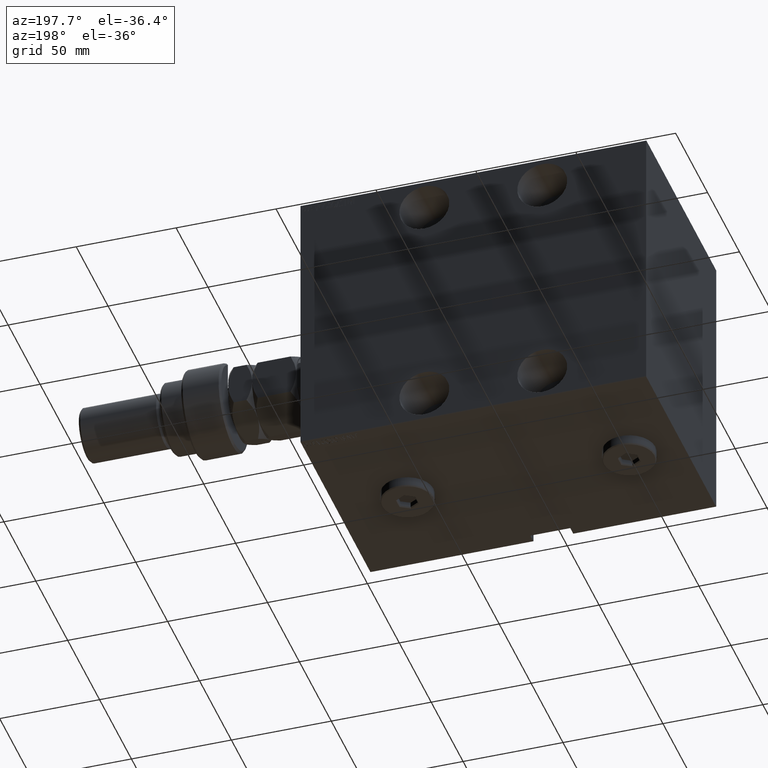
[diagram: clean part render]
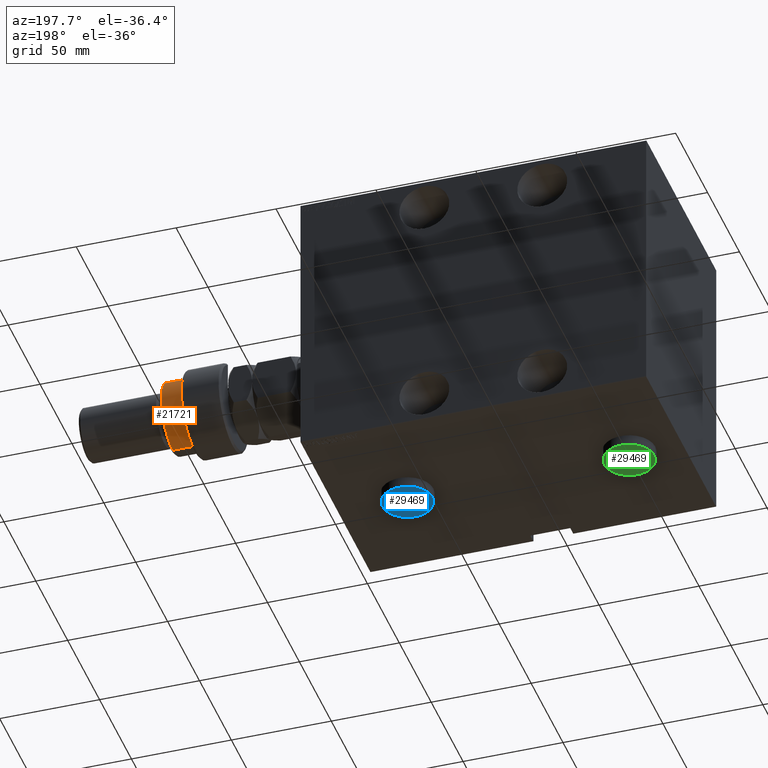
[diagram: same view with three faces highlighted in distinct colors, each labeled with its STEP entity id]
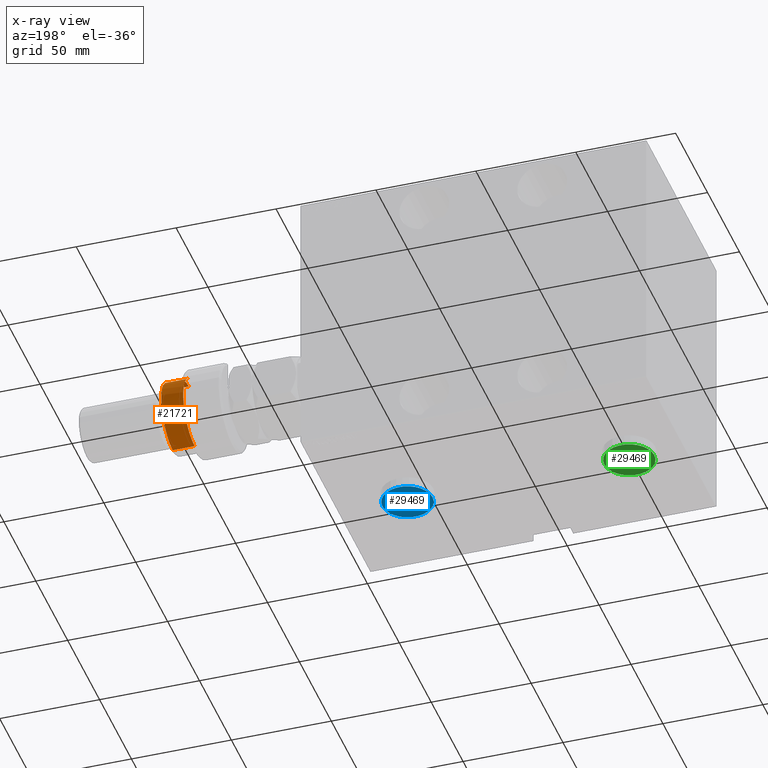
[diagram: x-ray of the same camera — body ghosted, the three highlighted faces saturated]
A machine part, auxiliary view with three faces highlighted in distinct colors.
The next image is the same camera in x-ray (body ghosted, the three faces saturated) — at least one of them is partly hidden behind the body in this view.
Their STEP definitions:

[orange] entity #21721 — the highlighted cylindrical surface (partial cylindrical patch) has radius 18 mm, axis along (-1, -0, 0).
#166 = LINE ( 'NONE', #10925, #43457 ) ;
#323 = FACE_OUTER_BOUND ( 'NONE', #20887, .T. ) ;
#633 = VECTOR ( 'NONE', #8754, 1000.000000000000000 ) ;
#2312 = CARTESIAN_POINT ( 'NONE',  ( -18.00000000000000000, 0.000000000000000000, 32.00000000000000000 ) ) ;
#2320 = CIRCLE ( 'NONE', #19082, 18.00000000000000000 ) ;
#3198 = ORIENTED_EDGE ( 'NONE', *, *, #14496, .F. ) ;
#3538 = ORIENTED_EDGE ( 'NONE', *, *, #39695, .F. ) ;
#6126 = LINE ( 'NONE', #24281, #633 ) ;
#7259 = DIRECTION ( 'NONE',  ( -1.000000000000000000, 0.000000000000000000, 0.000000000000000000 ) ) ;
#8520 = CARTESIAN_POINT ( 'NONE',  ( -15.28888485142065434, 9.500000000000000000, 23.00000000000000000 ) ) ;
#8754 = DIRECTION ( 'NONE',  ( -0.000000000000000000, -0.000000000000000000, -1.000000000000000000 ) ) ;
#10375 = DIRECTION ( 'NONE',  ( 0.000000000000000000, 0.000000000000000000, -1.000000000000000000 ) ) ;
#10925 = CARTESIAN_POINT ( 'NONE',  ( -15.28888485142065434, 9.500000000000000000, 32.00000000000000000 ) ) ;
#13495 = VERTEX_POINT ( 'NONE', #18708 ) ;
#14496 = EDGE_CURVE ( 'NONE', #25376, #39594, #19765, .T. ) ;
#14901 = CYLINDRICAL_SURFACE ( 'NONE', #36807, 18.00000000000000000 ) ;
#16530 = EDGE_CURVE ( 'NONE', #20883, #47144, #2320, .T. ) ;
#18254 = DIRECTION ( 'NONE',  ( -0.000000000000000000, -0.000000000000000000, -1.000000000000000000 ) ) ;
#18708 = CARTESIAN_POINT ( 'NONE',  ( -18.00000000000000000, 0.000000000000000000, 30.99999999999999645 ) ) ;
#19050 = EDGE_CURVE ( 'NONE', #13495, #43183, #33659, .T. ) ;
#19082 = AXIS2_PLACEMENT_3D ( 'NONE', #43895, #39630, #32920 ) ;
#19641 = CARTESIAN_POINT ( 'NONE',  ( 18.00000000000000000, 2.204364238465235428E-15, 20.00000000000000000 ) ) ;
#19675 = ORIENTED_EDGE ( 'NONE', *, *, #37031, .T. ) ;
#19765 = CIRCLE ( 'NONE', #38100, 18.00000000000000000 ) ;
#20142 = CARTESIAN_POINT ( 'NONE',  ( 0.000000000000000000, 0.000000000000000000, 30.99999999999999645 ) ) ;
#20532 = ORIENTED_EDGE ( 'NONE', *, *, #16530, .T. ) ;
#20883 = VERTEX_POINT ( 'NONE', #19641 ) ;
#20887 = EDGE_LOOP ( 'NONE', ( #31263, #33892, #20532, #19675, #3198, #3538 ) ) ;
#21721 = ADVANCED_FACE ( 'NONE', ( #323 ), #14901, .T. ) ;
#24281 = CARTESIAN_POINT ( 'NONE',  ( 18.00000000000000000, 2.204364238465235428E-15, 32.00000000000000000 ) ) ;
#25376 = VERTEX_POINT ( 'NONE', #38176 ) ;
#25504 = DIRECTION ( 'NONE',  ( 0.000000000000000000, 0.000000000000000000, 1.000000000000000000 ) ) ;
#25893 = CARTESIAN_POINT ( 'NONE',  ( 0.000000000000000000, 0.000000000000000000, 32.00000000000000000 ) ) ;
#26840 = DIRECTION ( 'NONE',  ( 1.000000000000000000, 0.000000000000000000, 0.000000000000000000 ) ) ;
#28632 = CARTESIAN_POINT ( 'NONE',  ( -15.28888485142065434, 9.500000000000000000, 19.99999999999999645 ) ) ;
#29784 = CARTESIAN_POINT ( 'NONE',  ( 18.00000000000000000, 2.204364238465235428E-15, 30.99999999999999645 ) ) ;
#30878 = EDGE_CURVE ( 'NONE', #43183, #20883, #6126, .T. ) ;
#31263 = ORIENTED_EDGE ( 'NONE', *, *, #19050, .T. ) ;
#32920 = DIRECTION ( 'NONE',  ( 1.000000000000000000, 0.000000000000000000, 0.000000000000000000 ) ) ;
#33659 = CIRCLE ( 'NONE', #45115, 18.00000000000000000 ) ;
#33892 = ORIENTED_EDGE ( 'NONE', *, *, #30878, .T. ) ;
#35960 = DIRECTION ( 'NONE',  ( -1.000000000000000000, 0.000000000000000000, 0.000000000000000000 ) ) ;
#36698 = VECTOR ( 'NONE', #41751, 1000.000000000000000 ) ;
#36807 = AXIS2_PLACEMENT_3D ( 'NONE', #25893, #18254, #7259 ) ;
#37031 = EDGE_CURVE ( 'NONE', #47144, #39594, #166, .T. ) ;
#38100 = AXIS2_PLACEMENT_3D ( 'NONE', #43131, #10375, #35960 ) ;
#38176 = CARTESIAN_POINT ( 'NONE',  ( -18.00000000000000000, 0.000000000000000000, 23.00000000000000000 ) ) ;
#39594 = VERTEX_POINT ( 'NONE', #8520 ) ;
#39630 = DIRECTION ( 'NONE',  ( 0.000000000000000000, 0.000000000000000000, 1.000000000000000000 ) ) ;
#39695 = EDGE_CURVE ( 'NONE', #13495, #25376, #41988, .T. ) ;
#41751 = DIRECTION ( 'NONE',  ( -0.000000000000000000, -0.000000000000000000, -1.000000000000000000 ) ) ;
#41907 = DIRECTION ( 'NONE',  ( 0.000000000000000000, 0.000000000000000000, -1.000000000000000000 ) ) ;
#41988 = LINE ( 'NONE', #2312, #36698 ) ;
#43131 = CARTESIAN_POINT ( 'NONE',  ( 0.000000000000000000, 0.000000000000000000, 23.00000000000000000 ) ) ;
#43183 = VERTEX_POINT ( 'NONE', #29784 ) ;
#43457 = VECTOR ( 'NONE', #25504, 1000.000000000000000 ) ;
#43895 = CARTESIAN_POINT ( 'NONE',  ( 0.000000000000000000, 0.000000000000000000, 20.00000000000000000 ) ) ;
#45115 = AXIS2_PLACEMENT_3D ( 'NONE', #20142, #41907, #26840 ) ;
#47144 = VERTEX_POINT ( 'NONE', #28632 ) ;

[blue] entity #29469 — the highlighted planar face has unit normal (-0, 0, -1).
#221 = VERTEX_POINT ( 'NONE', #18124 ) ;
#439 = EDGE_CURVE ( 'NONE', #6128, #14700, #28606, .T. ) ;
#1334 = CARTESIAN_POINT ( 'NONE',  ( -4.833333333333340143, -2.790526301083195104, 5.000000000000000000 ) ) ;
#1516 = VECTOR ( 'NONE', #36216, 1000.000000000000114 ) ;
#1586 = CIRCLE ( 'NONE', #34407, 12.50000000000001066 ) ;
#2491 = VECTOR ( 'NONE', #6222, 1000.000000000000000 ) ;
#3068 = CIRCLE ( 'NONE', #29772, 12.50000000000001066 ) ;
#3166 = CARTESIAN_POINT ( 'NONE',  ( 0.2500000000000015543, -5.436715034868981888, 5.000000000000000000 ) ) ;
#5276 = VERTEX_POINT ( 'NONE', #13781 ) ;
#5643 = PLANE ( 'NONE',  #7489 ) ;
#5803 = DIRECTION ( 'NONE',  ( -0.8660254037844387076, -0.4999999999999998335, 0.000000000000000000 ) ) ;
#5806 = DIRECTION ( 'NONE',  ( 0.000000000000000000, 1.000000000000000000, 0.000000000000000000 ) ) ;
#6128 = VERTEX_POINT ( 'NONE', #24114 ) ;
#6222 = DIRECTION ( 'NONE',  ( 0.8660254037844387076, -0.4999999999999998890, 0.000000000000000000 ) ) ;
#7489 = AXIS2_PLACEMENT_3D ( 'NONE', #30082, #7629, #8087 ) ;
#7629 = DIRECTION ( 'NONE',  ( 0.000000000000000000, 0.000000000000000000, 1.000000000000000000 ) ) ;
#8087 = DIRECTION ( 'NONE',  ( 1.000000000000000000, 0.000000000000000000, -0.000000000000000000 ) ) ;
#8973 = ORIENTED_EDGE ( 'NONE', *, *, #45655, .T. ) ;
#9216 = DIRECTION ( 'NONE',  ( 0.000000000000000000, 0.000000000000000000, 1.000000000000000000 ) ) ;
#9629 = LINE ( 'NONE', #42860, #29938 ) ;
#10048 = CARTESIAN_POINT ( 'NONE',  ( 4.583333333333339255, 2.934863868380602092, 5.000000000000000000 ) ) ;
#10432 = CARTESIAN_POINT ( 'NONE',  ( -0.2500000000000021094, 5.436715034868981000, 5.000000000000000000 ) ) ;
#12247 = ORIENTED_EDGE ( 'NONE', *, *, #17455, .T. ) ;
#13010 = ORIENTED_EDGE ( 'NONE', *, *, #23127, .T. ) ;
#13212 = ORIENTED_EDGE ( 'NONE', *, *, #37876, .T. ) ;
#13698 = LINE ( 'NONE', #3166, #40553 ) ;
#13781 = CARTESIAN_POINT ( 'NONE',  ( -12.50000000000001066, 0.000000000000000000, 5.000000000000000000 ) ) ;
#14700 = VERTEX_POINT ( 'NONE', #32325 ) ;
#15270 = FACE_OUTER_BOUND ( 'NONE', #16160, .T. ) ;
#16160 = EDGE_LOOP ( 'NONE', ( #45860, #12247 ) ) ;
#17455 = EDGE_CURVE ( 'NONE', #29007, #5276, #3068, .T. ) ;
#18124 = CARTESIAN_POINT ( 'NONE',  ( -1.883403334290581714E-15, -5.581052602166390209, 5.000000000000000000 ) ) ;
#18539 = ORIENTED_EDGE ( 'NONE', *, *, #22720, .T. ) ;
#19168 = EDGE_LOOP ( 'NONE', ( #18539, #26284, #13010, #44919, #8973, #13212 ) ) ;
#22720 = EDGE_CURVE ( 'NONE', #46436, #6128, #9629, .T. ) ;
#22788 = VERTEX_POINT ( 'NONE', #31861 ) ;
#23127 = EDGE_CURVE ( 'NONE', #14700, #32634, #24143, .T. ) ;
#23787 = DIRECTION ( 'NONE',  ( 1.000000000000000000, 0.000000000000000000, 0.000000000000000000 ) ) ;
#23815 = LINE ( 'NONE', #38161, #26751 ) ;
#24114 = CARTESIAN_POINT ( 'NONE',  ( -4.833333333333340143, 2.790526301083195104, 5.000000000000000000 ) ) ;
#24143 = LINE ( 'NONE', #10048, #2491 ) ;
#25709 = DIRECTION ( 'NONE',  ( 0.8660254037844388186, 0.4999999999999997780, 0.000000000000000000 ) ) ;
#26284 = ORIENTED_EDGE ( 'NONE', *, *, #439, .T. ) ;
#26751 = VECTOR ( 'NONE', #45326, 1000.000000000000000 ) ;
#27142 = CARTESIAN_POINT ( 'NONE',  ( 0.000000000000000000, 0.000000000000000000, 5.000000000000000000 ) ) ;
#28606 = LINE ( 'NONE', #10432, #43899 ) ;
#29007 = VERTEX_POINT ( 'NONE', #45965 ) ;
#29469 = ADVANCED_FACE ( 'NONE', ( #30318, #15270 ), #5643, .T. ) ;
#29772 = AXIS2_PLACEMENT_3D ( 'NONE', #27142, #41741, #37906 ) ;
#29938 = VECTOR ( 'NONE', #5806, 1000.000000000000000 ) ;
#30082 = CARTESIAN_POINT ( 'NONE',  ( 0.000000000000000000, 0.000000000000000000, 5.000000000000000000 ) ) ;
#30318 = FACE_BOUND ( 'NONE', #19168, .T. ) ;
#31861 = CARTESIAN_POINT ( 'NONE',  ( 4.833333333333341919, -2.790526301083194216, 5.000000000000000000 ) ) ;
#32325 = CARTESIAN_POINT ( 'NONE',  ( 1.144664513637780713E-15, 5.581052602166389320, 5.000000000000000000 ) ) ;
#32401 = LINE ( 'NONE', #33096, #1516 ) ;
#32634 = VERTEX_POINT ( 'NONE', #44450 ) ;
#33096 = CARTESIAN_POINT ( 'NONE',  ( -4.583333333333337478, -2.934863868380603424, 5.000000000000000000 ) ) ;
#34407 = AXIS2_PLACEMENT_3D ( 'NONE', #41964, #9216, #23787 ) ;
#36216 = DIRECTION ( 'NONE',  ( -0.8660254037844385966, 0.5000000000000001110, 0.000000000000000000 ) ) ;
#37876 = EDGE_CURVE ( 'NONE', #221, #46436, #32401, .T. ) ;
#37906 = DIRECTION ( 'NONE',  ( 1.000000000000000000, 0.000000000000000000, 0.000000000000000000 ) ) ;
#38161 = CARTESIAN_POINT ( 'NONE',  ( 4.833333333333341919, -2.501851166488378908, 5.000000000000000000 ) ) ;
#39772 = EDGE_CURVE ( 'NONE', #32634, #22788, #23815, .T. ) ;
#40553 = VECTOR ( 'NONE', #5803, 1000.000000000000000 ) ;
#40664 = EDGE_CURVE ( 'NONE', #5276, #29007, #1586, .T. ) ;
#41741 = DIRECTION ( 'NONE',  ( 0.000000000000000000, 0.000000000000000000, 1.000000000000000000 ) ) ;
#41964 = CARTESIAN_POINT ( 'NONE',  ( 0.000000000000000000, 0.000000000000000000, 5.000000000000000000 ) ) ;
#42860 = CARTESIAN_POINT ( 'NONE',  ( -4.833333333333340143, 2.501851166488380240, 5.000000000000000000 ) ) ;
#43899 = VECTOR ( 'NONE', #25709, 1000.000000000000114 ) ;
#44450 = CARTESIAN_POINT ( 'NONE',  ( 4.833333333333341919, 2.790526301083194216, 5.000000000000000000 ) ) ;
#44919 = ORIENTED_EDGE ( 'NONE', *, *, #39772, .T. ) ;
#45326 = DIRECTION ( 'NONE',  ( 0.000000000000000000, -1.000000000000000000, 0.000000000000000000 ) ) ;
#45655 = EDGE_CURVE ( 'NONE', #22788, #221, #13698, .T. ) ;
#45860 = ORIENTED_EDGE ( 'NONE', *, *, #40664, .T. ) ;
#45965 = CARTESIAN_POINT ( 'NONE',  ( 12.50000000000001066, 1.561424668912876097E-15, 5.000000000000000000 ) ) ;
#46436 = VERTEX_POINT ( 'NONE', #1334 ) ;

[green] entity #29469 — the highlighted planar face has unit normal (-0, 0, -1).
#221 = VERTEX_POINT ( 'NONE', #18124 ) ;
#439 = EDGE_CURVE ( 'NONE', #6128, #14700, #28606, .T. ) ;
#1334 = CARTESIAN_POINT ( 'NONE',  ( -4.833333333333340143, -2.790526301083195104, 5.000000000000000000 ) ) ;
#1516 = VECTOR ( 'NONE', #36216, 1000.000000000000114 ) ;
#1586 = CIRCLE ( 'NONE', #34407, 12.50000000000001066 ) ;
#2491 = VECTOR ( 'NONE', #6222, 1000.000000000000000 ) ;
#3068 = CIRCLE ( 'NONE', #29772, 12.50000000000001066 ) ;
#3166 = CARTESIAN_POINT ( 'NONE',  ( 0.2500000000000015543, -5.436715034868981888, 5.000000000000000000 ) ) ;
#5276 = VERTEX_POINT ( 'NONE', #13781 ) ;
#5643 = PLANE ( 'NONE',  #7489 ) ;
#5803 = DIRECTION ( 'NONE',  ( -0.8660254037844387076, -0.4999999999999998335, 0.000000000000000000 ) ) ;
#5806 = DIRECTION ( 'NONE',  ( 0.000000000000000000, 1.000000000000000000, 0.000000000000000000 ) ) ;
#6128 = VERTEX_POINT ( 'NONE', #24114 ) ;
#6222 = DIRECTION ( 'NONE',  ( 0.8660254037844387076, -0.4999999999999998890, 0.000000000000000000 ) ) ;
#7489 = AXIS2_PLACEMENT_3D ( 'NONE', #30082, #7629, #8087 ) ;
#7629 = DIRECTION ( 'NONE',  ( 0.000000000000000000, 0.000000000000000000, 1.000000000000000000 ) ) ;
#8087 = DIRECTION ( 'NONE',  ( 1.000000000000000000, 0.000000000000000000, -0.000000000000000000 ) ) ;
#8973 = ORIENTED_EDGE ( 'NONE', *, *, #45655, .T. ) ;
#9216 = DIRECTION ( 'NONE',  ( 0.000000000000000000, 0.000000000000000000, 1.000000000000000000 ) ) ;
#9629 = LINE ( 'NONE', #42860, #29938 ) ;
#10048 = CARTESIAN_POINT ( 'NONE',  ( 4.583333333333339255, 2.934863868380602092, 5.000000000000000000 ) ) ;
#10432 = CARTESIAN_POINT ( 'NONE',  ( -0.2500000000000021094, 5.436715034868981000, 5.000000000000000000 ) ) ;
#12247 = ORIENTED_EDGE ( 'NONE', *, *, #17455, .T. ) ;
#13010 = ORIENTED_EDGE ( 'NONE', *, *, #23127, .T. ) ;
#13212 = ORIENTED_EDGE ( 'NONE', *, *, #37876, .T. ) ;
#13698 = LINE ( 'NONE', #3166, #40553 ) ;
#13781 = CARTESIAN_POINT ( 'NONE',  ( -12.50000000000001066, 0.000000000000000000, 5.000000000000000000 ) ) ;
#14700 = VERTEX_POINT ( 'NONE', #32325 ) ;
#15270 = FACE_OUTER_BOUND ( 'NONE', #16160, .T. ) ;
#16160 = EDGE_LOOP ( 'NONE', ( #45860, #12247 ) ) ;
#17455 = EDGE_CURVE ( 'NONE', #29007, #5276, #3068, .T. ) ;
#18124 = CARTESIAN_POINT ( 'NONE',  ( -1.883403334290581714E-15, -5.581052602166390209, 5.000000000000000000 ) ) ;
#18539 = ORIENTED_EDGE ( 'NONE', *, *, #22720, .T. ) ;
#19168 = EDGE_LOOP ( 'NONE', ( #18539, #26284, #13010, #44919, #8973, #13212 ) ) ;
#22720 = EDGE_CURVE ( 'NONE', #46436, #6128, #9629, .T. ) ;
#22788 = VERTEX_POINT ( 'NONE', #31861 ) ;
#23127 = EDGE_CURVE ( 'NONE', #14700, #32634, #24143, .T. ) ;
#23787 = DIRECTION ( 'NONE',  ( 1.000000000000000000, 0.000000000000000000, 0.000000000000000000 ) ) ;
#23815 = LINE ( 'NONE', #38161, #26751 ) ;
#24114 = CARTESIAN_POINT ( 'NONE',  ( -4.833333333333340143, 2.790526301083195104, 5.000000000000000000 ) ) ;
#24143 = LINE ( 'NONE', #10048, #2491 ) ;
#25709 = DIRECTION ( 'NONE',  ( 0.8660254037844388186, 0.4999999999999997780, 0.000000000000000000 ) ) ;
#26284 = ORIENTED_EDGE ( 'NONE', *, *, #439, .T. ) ;
#26751 = VECTOR ( 'NONE', #45326, 1000.000000000000000 ) ;
#27142 = CARTESIAN_POINT ( 'NONE',  ( 0.000000000000000000, 0.000000000000000000, 5.000000000000000000 ) ) ;
#28606 = LINE ( 'NONE', #10432, #43899 ) ;
#29007 = VERTEX_POINT ( 'NONE', #45965 ) ;
#29469 = ADVANCED_FACE ( 'NONE', ( #30318, #15270 ), #5643, .T. ) ;
#29772 = AXIS2_PLACEMENT_3D ( 'NONE', #27142, #41741, #37906 ) ;
#29938 = VECTOR ( 'NONE', #5806, 1000.000000000000000 ) ;
#30082 = CARTESIAN_POINT ( 'NONE',  ( 0.000000000000000000, 0.000000000000000000, 5.000000000000000000 ) ) ;
#30318 = FACE_BOUND ( 'NONE', #19168, .T. ) ;
#31861 = CARTESIAN_POINT ( 'NONE',  ( 4.833333333333341919, -2.790526301083194216, 5.000000000000000000 ) ) ;
#32325 = CARTESIAN_POINT ( 'NONE',  ( 1.144664513637780713E-15, 5.581052602166389320, 5.000000000000000000 ) ) ;
#32401 = LINE ( 'NONE', #33096, #1516 ) ;
#32634 = VERTEX_POINT ( 'NONE', #44450 ) ;
#33096 = CARTESIAN_POINT ( 'NONE',  ( -4.583333333333337478, -2.934863868380603424, 5.000000000000000000 ) ) ;
#34407 = AXIS2_PLACEMENT_3D ( 'NONE', #41964, #9216, #23787 ) ;
#36216 = DIRECTION ( 'NONE',  ( -0.8660254037844385966, 0.5000000000000001110, 0.000000000000000000 ) ) ;
#37876 = EDGE_CURVE ( 'NONE', #221, #46436, #32401, .T. ) ;
#37906 = DIRECTION ( 'NONE',  ( 1.000000000000000000, 0.000000000000000000, 0.000000000000000000 ) ) ;
#38161 = CARTESIAN_POINT ( 'NONE',  ( 4.833333333333341919, -2.501851166488378908, 5.000000000000000000 ) ) ;
#39772 = EDGE_CURVE ( 'NONE', #32634, #22788, #23815, .T. ) ;
#40553 = VECTOR ( 'NONE', #5803, 1000.000000000000000 ) ;
#40664 = EDGE_CURVE ( 'NONE', #5276, #29007, #1586, .T. ) ;
#41741 = DIRECTION ( 'NONE',  ( 0.000000000000000000, 0.000000000000000000, 1.000000000000000000 ) ) ;
#41964 = CARTESIAN_POINT ( 'NONE',  ( 0.000000000000000000, 0.000000000000000000, 5.000000000000000000 ) ) ;
#42860 = CARTESIAN_POINT ( 'NONE',  ( -4.833333333333340143, 2.501851166488380240, 5.000000000000000000 ) ) ;
#43899 = VECTOR ( 'NONE', #25709, 1000.000000000000114 ) ;
#44450 = CARTESIAN_POINT ( 'NONE',  ( 4.833333333333341919, 2.790526301083194216, 5.000000000000000000 ) ) ;
#44919 = ORIENTED_EDGE ( 'NONE', *, *, #39772, .T. ) ;
#45326 = DIRECTION ( 'NONE',  ( 0.000000000000000000, -1.000000000000000000, 0.000000000000000000 ) ) ;
#45655 = EDGE_CURVE ( 'NONE', #22788, #221, #13698, .T. ) ;
#45860 = ORIENTED_EDGE ( 'NONE', *, *, #40664, .T. ) ;
#45965 = CARTESIAN_POINT ( 'NONE',  ( 12.50000000000001066, 1.561424668912876097E-15, 5.000000000000000000 ) ) ;
#46436 = VERTEX_POINT ( 'NONE', #1334 ) ;